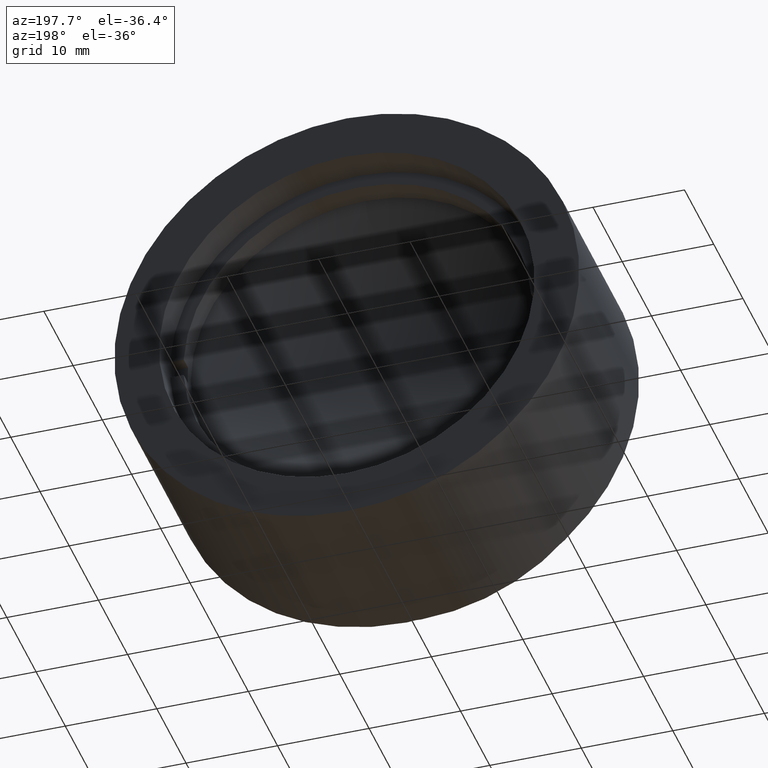
[diagram: clean part render]
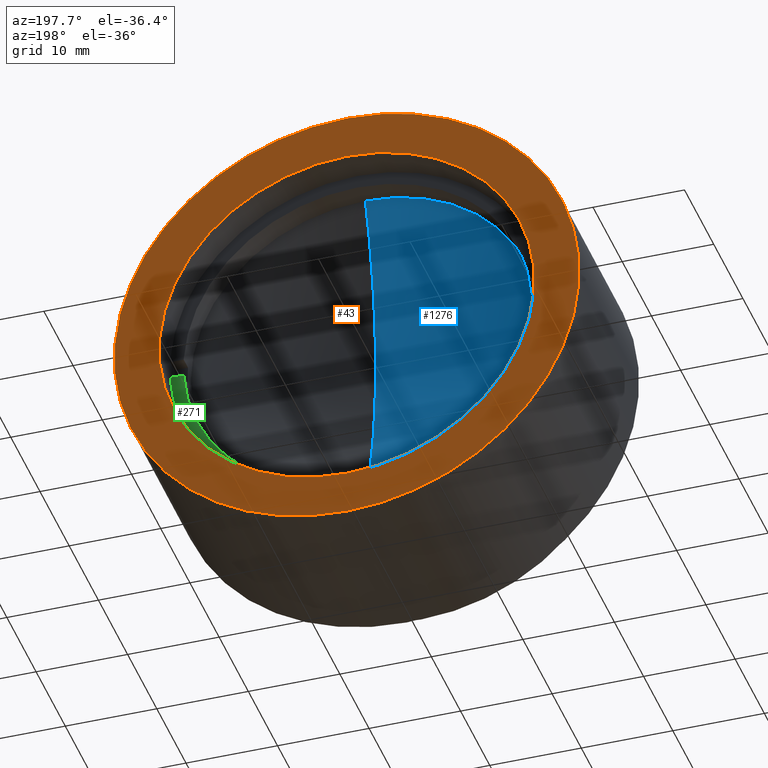
[diagram: same view with three faces highlighted in distinct colors, each labeled with its STEP entity id]
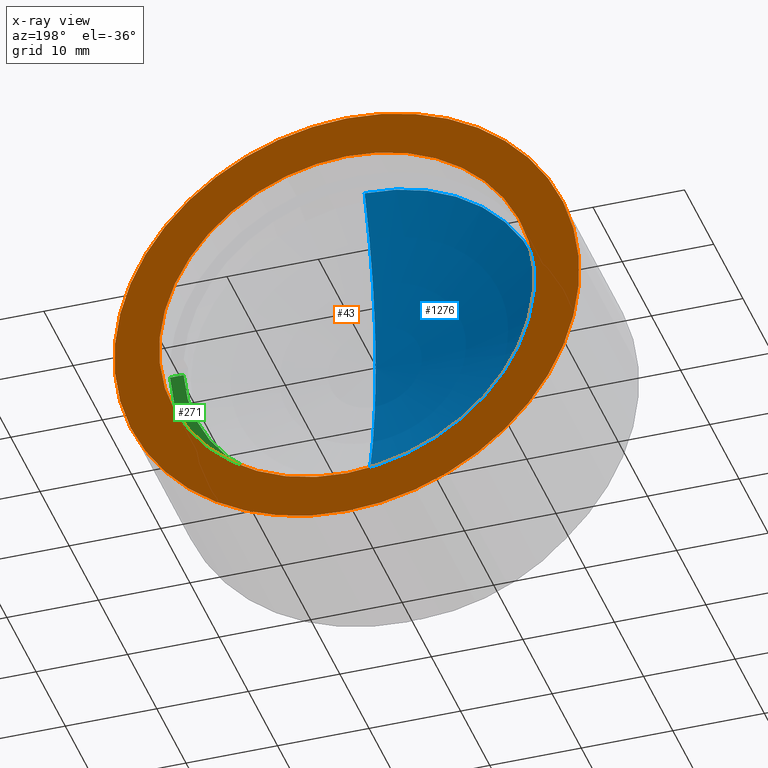
[diagram: x-ray of the same camera — body ghosted, the three highlighted faces saturated]
A machine part, auxiliary view with three faces highlighted in distinct colors.
The next image is the same camera in x-ray (body ghosted, the three faces saturated) — at least one of them is partly hidden behind the body in this view.
Their STEP definitions:

[orange] entity #43 — the highlighted planar face has unit normal (-0, 1, 0).
#18 = DIRECTION ( 'NONE',  ( 0.000000000000000000, 0.000000000000000000, -1.000000000000000000 ) ) ;
#22 = CARTESIAN_POINT ( 'NONE',  ( -8.905217641199635992, -4.461994249633213450, 26.65036394347448123 ) ) ;
#43 = ADVANCED_FACE ( 'NONE', ( #675, #942 ), #1178, .T. ) ;
#47 = ORIENTED_EDGE ( 'NONE', *, *, #1070, .T. ) ;
#59 = CARTESIAN_POINT ( 'NONE',  ( -8.905217641199635992, -4.461994249633213450, 26.65036394347448123 ) ) ;
#139 = VERTEX_POINT ( 'NONE', #543 ) ;
#161 = DIRECTION ( 'NONE',  ( -0.000000000000000000, 1.000000000000000000, 0.000000000000000000 ) ) ;
#172 = DIRECTION ( 'NONE',  ( 0.000000000000000000, 0.000000000000000000, -1.000000000000000000 ) ) ;
#252 = EDGE_LOOP ( 'NONE', ( #604, #346 ) ) ;
#262 = DIRECTION ( 'NONE',  ( 1.000000000000000000, 0.000000000000000000, 0.000000000000000000 ) ) ;
#292 = EDGE_LOOP ( 'NONE', ( #47, #864 ) ) ;
#299 = AXIS2_PLACEMENT_3D ( 'NONE', #959, #1191, #172 ) ;
#346 = ORIENTED_EDGE ( 'NONE', *, *, #360, .F. ) ;
#360 = EDGE_CURVE ( 'NONE', #139, #986, #499, .T. ) ;
#381 = CIRCLE ( 'NONE', #467, 20.50000000000000000 ) ;
#392 = CARTESIAN_POINT ( 'NONE',  ( -8.905217641199635992, -4.461994249633213450, 6.150363943474481232 ) ) ;
#425 = AXIS2_PLACEMENT_3D ( 'NONE', #1059, #161, #262 ) ;
#467 = AXIS2_PLACEMENT_3D ( 'NONE', #59, #547, #475 ) ;
#471 = CARTESIAN_POINT ( 'NONE',  ( -8.905217641199635992, -4.461994249633213450, 1.250363943474483541 ) ) ;
#475 = DIRECTION ( 'NONE',  ( 0.000000000000000000, 0.000000000000000000, -1.000000000000000000 ) ) ;
#499 = CIRCLE ( 'NONE', #1135, 25.39999999999999858 ) ;
#543 = CARTESIAN_POINT ( 'NONE',  ( -8.905217641199632439, -4.461994249633213450, 52.05036394347447981 ) ) ;
#547 = DIRECTION ( 'NONE',  ( 0.000000000000000000, -1.000000000000000000, 0.000000000000000000 ) ) ;
#604 = ORIENTED_EDGE ( 'NONE', *, *, #839, .F. ) ;
#619 = DIRECTION ( 'NONE',  ( 0.000000000000000000, -1.000000000000000000, 0.000000000000000000 ) ) ;
#675 = FACE_OUTER_BOUND ( 'NONE', #252, .T. ) ;
#684 = CARTESIAN_POINT ( 'NONE',  ( -8.905217641199634215, -4.461994249633213450, 47.15036394347448123 ) ) ;
#708 = CIRCLE ( 'NONE', #299, 20.50000000000000000 ) ;
#729 = CIRCLE ( 'NONE', #911, 25.39999999999999858 ) ;
#736 = VERTEX_POINT ( 'NONE', #392 ) ;
#807 = CARTESIAN_POINT ( 'NONE',  ( -8.905217641199635992, -4.461994249633213450, 26.65036394347448123 ) ) ;
#839 = EDGE_CURVE ( 'NONE', #986, #139, #729, .T. ) ;
#864 = ORIENTED_EDGE ( 'NONE', *, *, #894, .T. ) ;
#894 = EDGE_CURVE ( 'NONE', #1183, #736, #708, .T. ) ;
#910 = DIRECTION ( 'NONE',  ( 0.000000000000000000, 0.000000000000000000, -1.000000000000000000 ) ) ;
#911 = AXIS2_PLACEMENT_3D ( 'NONE', #807, #619, #910 ) ;
#942 = FACE_BOUND ( 'NONE', #292, .T. ) ;
#959 = CARTESIAN_POINT ( 'NONE',  ( -8.905217641199635992, -4.461994249633213450, 26.65036394347448123 ) ) ;
#986 = VERTEX_POINT ( 'NONE', #471 ) ;
#1023 = DIRECTION ( 'NONE',  ( 0.000000000000000000, -1.000000000000000000, 0.000000000000000000 ) ) ;
#1059 = CARTESIAN_POINT ( 'NONE',  ( 16.49478235880036436, -4.461994249633213450, 26.65036394347448123 ) ) ;
#1070 = EDGE_CURVE ( 'NONE', #736, #1183, #381, .T. ) ;
#1135 = AXIS2_PLACEMENT_3D ( 'NONE', #22, #1023, #18 ) ;
#1178 = PLANE ( 'NONE',  #425 ) ;
#1183 = VERTEX_POINT ( 'NONE', #684 ) ;
#1191 = DIRECTION ( 'NONE',  ( 0.000000000000000000, -1.000000000000000000, 0.000000000000000000 ) ) ;

[blue] entity #1276 — the highlighted spherical surface has radius 54.838 mm.
#48 = EDGE_LOOP ( 'NONE', ( #572, #304 ) ) ;
#202 = CARTESIAN_POINT ( 'NONE',  ( -8.905217641199644873, 40.48052743161631639, 26.65036394347453097 ) ) ;
#231 = CARTESIAN_POINT ( 'NONE',  ( -8.905217641199637768, -10.58028184516615688, 46.65036394347453808 ) ) ;
#265 = EDGE_CURVE ( 'NONE', #979, #484, #276, .T. ) ;
#276 = CIRCLE ( 'NONE', #426, 20.00000000000000000 ) ;
#289 = CIRCLE ( 'NONE', #1207, 54.83800000000000097 ) ;
#296 = DIRECTION ( 'NONE',  ( -1.000000000000000000, -1.224646799147353207E-16, 0.000000000000000000 ) ) ;
#304 = ORIENTED_EDGE ( 'NONE', *, *, #265, .T. ) ;
#367 = CARTESIAN_POINT ( 'NONE',  ( -8.905217641199637768, -10.58028184516615688, 26.65036394347448478 ) ) ;
#386 = SPHERICAL_SURFACE ( 'NONE', #634, 54.83800000000000097 ) ;
#403 = DIRECTION ( 'NONE',  ( 0.000000000000000000, 0.000000000000000000, -1.000000000000000000 ) ) ;
#426 = AXIS2_PLACEMENT_3D ( 'NONE', #367, #1307, #777 ) ;
#484 = VERTEX_POINT ( 'NONE', #231 ) ;
#508 = FACE_OUTER_BOUND ( 'NONE', #48, .T. ) ;
#572 = ORIENTED_EDGE ( 'NONE', *, *, #1270, .F. ) ;
#634 = AXIS2_PLACEMENT_3D ( 'NONE', #202, #1200, #999 ) ;
#777 = DIRECTION ( 'NONE',  ( 0.000000000000000000, 0.000000000000000000, 1.000000000000000000 ) ) ;
#979 = VERTEX_POINT ( 'NONE', #1288 ) ;
#999 = DIRECTION ( 'NONE',  ( 0.000000000000000000, 0.000000000000000000, 1.000000000000000000 ) ) ;
#1086 = CARTESIAN_POINT ( 'NONE',  ( -8.905217641199644873, 40.48052743161631639, 26.65036394347453097 ) ) ;
#1200 = DIRECTION ( 'NONE',  ( 1.224646799147353207E-16, -1.000000000000000000, 0.000000000000000000 ) ) ;
#1207 = AXIS2_PLACEMENT_3D ( 'NONE', #1086, #296, #403 ) ;
#1270 = EDGE_CURVE ( 'NONE', #979, #484, #289, .T. ) ;
#1276 = ADVANCED_FACE ( 'NONE', ( #508 ), #386, .F. ) ;
#1288 = CARTESIAN_POINT ( 'NONE',  ( -8.905217641199635992, -10.58028184516615688, 6.650363943474530970 ) ) ;
#1307 = DIRECTION ( 'NONE',  ( -1.224646799147353207E-16, 1.000000000000000000, 0.000000000000000000 ) ) ;

[green] entity #271 — the highlighted planar face has unit normal (0, -1, 0).
#38 = ORIENTED_EDGE ( 'NONE', *, *, #97, .F. ) ;
#54 = CARTESIAN_POINT ( 'NONE',  ( -8.905217641199669742, -8.080281845166151555, 26.65036394347453097 ) ) ;
#61 = DIRECTION ( 'NONE',  ( 0.000000000000000000, 0.000000000000000000, 1.000000000000000000 ) ) ;
#63 = EDGE_CURVE ( 'NONE', #833, #399, #599, .T. ) ;
#97 = EDGE_CURVE ( 'NONE', #732, #450, #174, .T. ) ;
#102 = CARTESIAN_POINT ( 'NONE',  ( -35.75775791381426671, -8.080281845166156884, 25.65036394347453097 ) ) ;
#138 = CIRCLE ( 'NONE', #1220, 19.00000000000000355 ) ;
#144 = DIRECTION ( 'NONE',  ( 0.000000000000000000, 1.000000000000000000, 0.000000000000000000 ) ) ;
#145 = VECTOR ( 'NONE', #632, 1000.000000000000000 ) ;
#174 = CIRCLE ( 'NONE', #670, 19.00000000000000355 ) ;
#258 = DIRECTION ( 'NONE',  ( 0.000000000000000000, 1.000000000000000000, 0.000000000000000000 ) ) ;
#269 = PLANE ( 'NONE',  #600 ) ;
#271 = ADVANCED_FACE ( 'NONE', ( #1184 ), #269, .F. ) ;
#272 = DIRECTION ( 'NONE',  ( 0.000000000000000000, 0.000000000000000000, 1.000000000000000000 ) ) ;
#332 = EDGE_CURVE ( 'NONE', #1164, #732, #1109, .T. ) ;
#373 = DIRECTION ( 'NONE',  ( 0.000000000000000000, -1.000000000000000000, 0.000000000000000000 ) ) ;
#389 = CIRCLE ( 'NONE', #1069, 20.50000000000000355 ) ;
#399 = VERTEX_POINT ( 'NONE', #924 ) ;
#404 = EDGE_LOOP ( 'NONE', ( #548, #1054, #1306, #1033, #38, #540 ) ) ;
#433 = DIRECTION ( 'NONE',  ( 0.000000000000000000, 0.000000000000000000, 1.000000000000000000 ) ) ;
#450 = VERTEX_POINT ( 'NONE', #451 ) ;
#451 = CARTESIAN_POINT ( 'NONE',  ( -8.905217641199667966, -8.080281845166151555, 7.650363943474531858 ) ) ;
#496 = LINE ( 'NONE', #785, #145 ) ;
#540 = ORIENTED_EDGE ( 'NONE', *, *, #332, .F. ) ;
#548 = ORIENTED_EDGE ( 'NONE', *, *, #700, .T. ) ;
#576 = DIRECTION ( 'NONE',  ( 0.000000000000000000, 0.000000000000000000, 1.000000000000000000 ) ) ;
#588 = DIRECTION ( 'NONE',  ( 0.000000000000000000, 1.000000000000000000, 0.000000000000000000 ) ) ;
#599 = CIRCLE ( 'NONE', #688, 20.50000000000000355 ) ;
#600 = AXIS2_PLACEMENT_3D ( 'NONE', #680, #373, #1081 ) ;
#612 = EDGE_CURVE ( 'NONE', #450, #1152, #138, .T. ) ;
#632 = DIRECTION ( 'NONE',  ( -1.000000000000000000, 0.000000000000000000, 0.000000000000000000 ) ) ;
#670 = AXIS2_PLACEMENT_3D ( 'NONE', #1053, #258, #433 ) ;
#680 = CARTESIAN_POINT ( 'NONE',  ( 10.09478235880033026, -8.080281845166156884, 26.65036394347453097 ) ) ;
#688 = AXIS2_PLACEMENT_3D ( 'NONE', #54, #144, #61 ) ;
#700 = EDGE_CURVE ( 'NONE', #1164, #833, #389, .T. ) ;
#732 = VERTEX_POINT ( 'NONE', #1310 ) ;
#785 = CARTESIAN_POINT ( 'NONE',  ( -35.75775791381426671, -8.080281845166156884, 25.65036394347453097 ) ) ;
#833 = VERTEX_POINT ( 'NONE', #905 ) ;
#882 = CARTESIAN_POINT ( 'NONE',  ( -8.905217641199669742, -8.080281845166151555, 26.65036394347453097 ) ) ;
#905 = CARTESIAN_POINT ( 'NONE',  ( -8.905217641199667966, -8.080281845166151555, 6.150363943474530082 ) ) ;
#924 = CARTESIAN_POINT ( 'NONE',  ( -29.38081287064296987, -8.080281845166156884, 25.65036394347453097 ) ) ;
#962 = VECTOR ( 'NONE', #1011, 1000.000000000000000 ) ;
#984 = CARTESIAN_POINT ( 'NONE',  ( -8.905217641199669742, -8.080281845166151555, 26.65036394347453097 ) ) ;
#1011 = DIRECTION ( 'NONE',  ( -1.000000000000000000, 0.000000000000000000, 0.000000000000000000 ) ) ;
#1033 = ORIENTED_EDGE ( 'NONE', *, *, #612, .F. ) ;
#1053 = CARTESIAN_POINT ( 'NONE',  ( -8.905217641199669742, -8.080281845166151555, 26.65036394347453097 ) ) ;
#1054 = ORIENTED_EDGE ( 'NONE', *, *, #63, .T. ) ;
#1069 = AXIS2_PLACEMENT_3D ( 'NONE', #984, #588, #576 ) ;
#1079 = CARTESIAN_POINT ( 'NONE',  ( -27.87888360220997086, -8.080281845166151555, 25.65036394347453097 ) ) ;
#1081 = DIRECTION ( 'NONE',  ( 0.000000000000000000, 0.000000000000000000, -1.000000000000000000 ) ) ;
#1094 = DIRECTION ( 'NONE',  ( 0.000000000000000000, 1.000000000000000000, 0.000000000000000000 ) ) ;
#1109 = LINE ( 'NONE', #102, #962 ) ;
#1152 = VERTEX_POINT ( 'NONE', #1079 ) ;
#1164 = VERTEX_POINT ( 'NONE', #1257 ) ;
#1184 = FACE_OUTER_BOUND ( 'NONE', #404, .T. ) ;
#1220 = AXIS2_PLACEMENT_3D ( 'NONE', #882, #1094, #272 ) ;
#1257 = CARTESIAN_POINT ( 'NONE',  ( 11.57037758824357887, -8.080281845166156884, 25.65036394347453097 ) ) ;
#1306 = ORIENTED_EDGE ( 'NONE', *, *, #1308, .F. ) ;
#1308 = EDGE_CURVE ( 'NONE', #1152, #399, #496, .T. ) ;
#1310 = CARTESIAN_POINT ( 'NONE',  ( 10.06844831981062960, -8.080281845166151555, 25.65036394347453097 ) ) ;